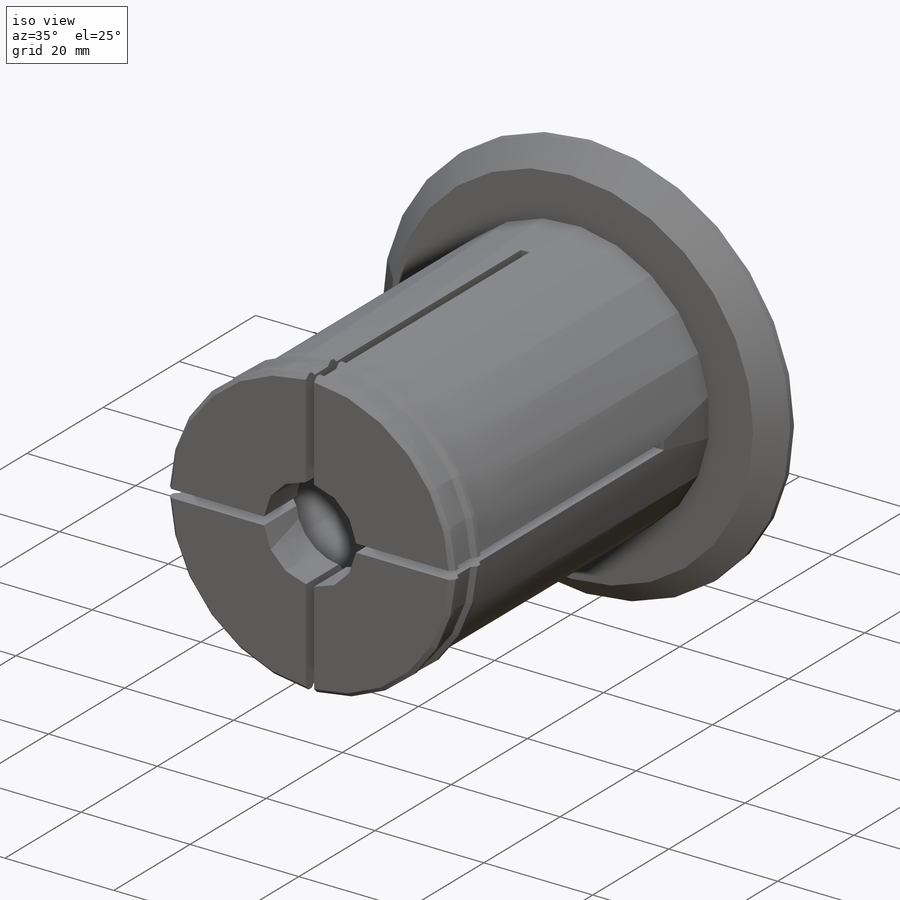
[diagram: iso view]
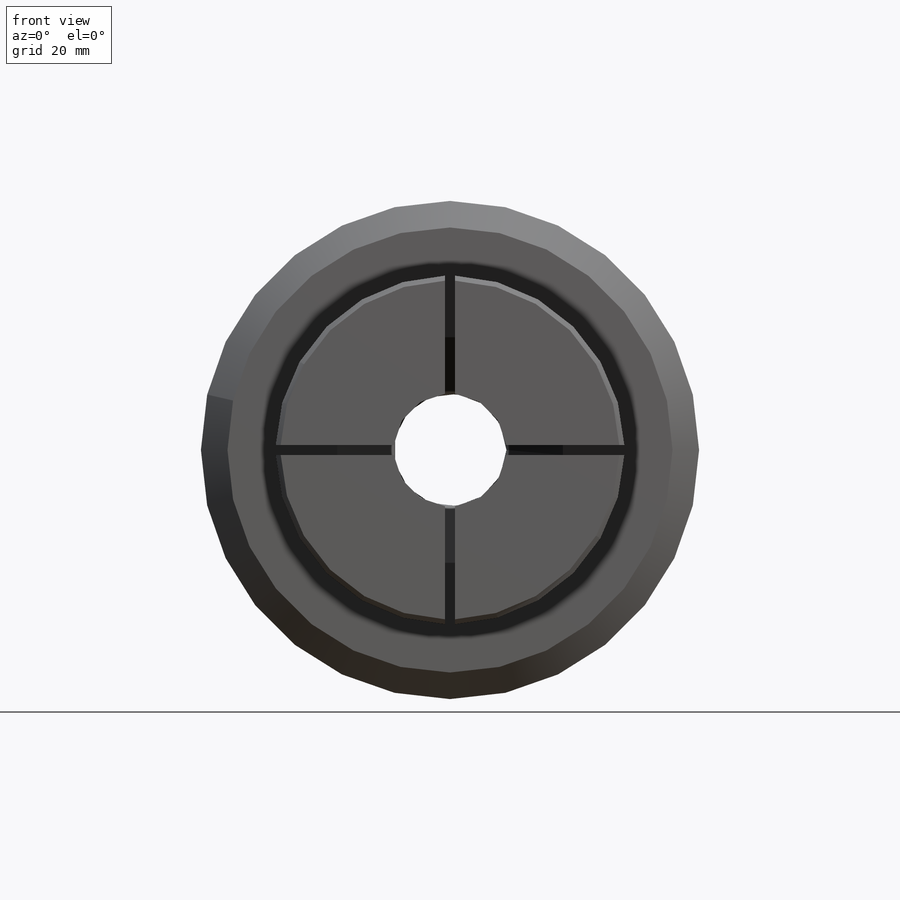
[diagram: front view]
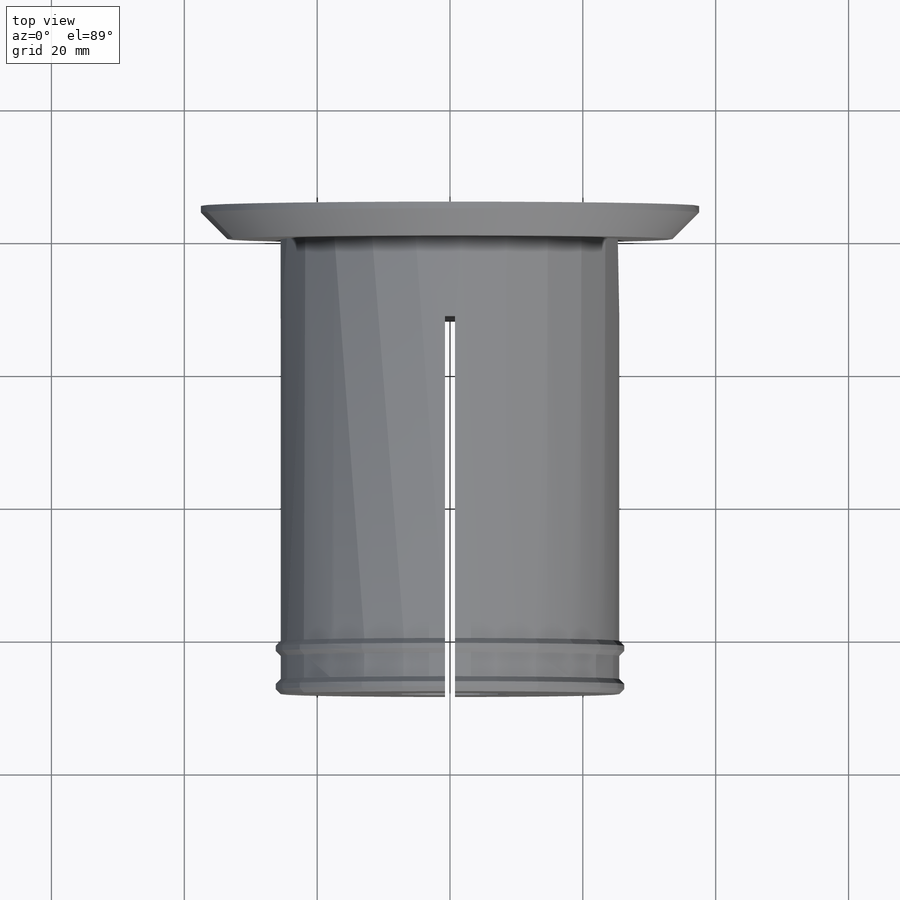
[diagram: top view]
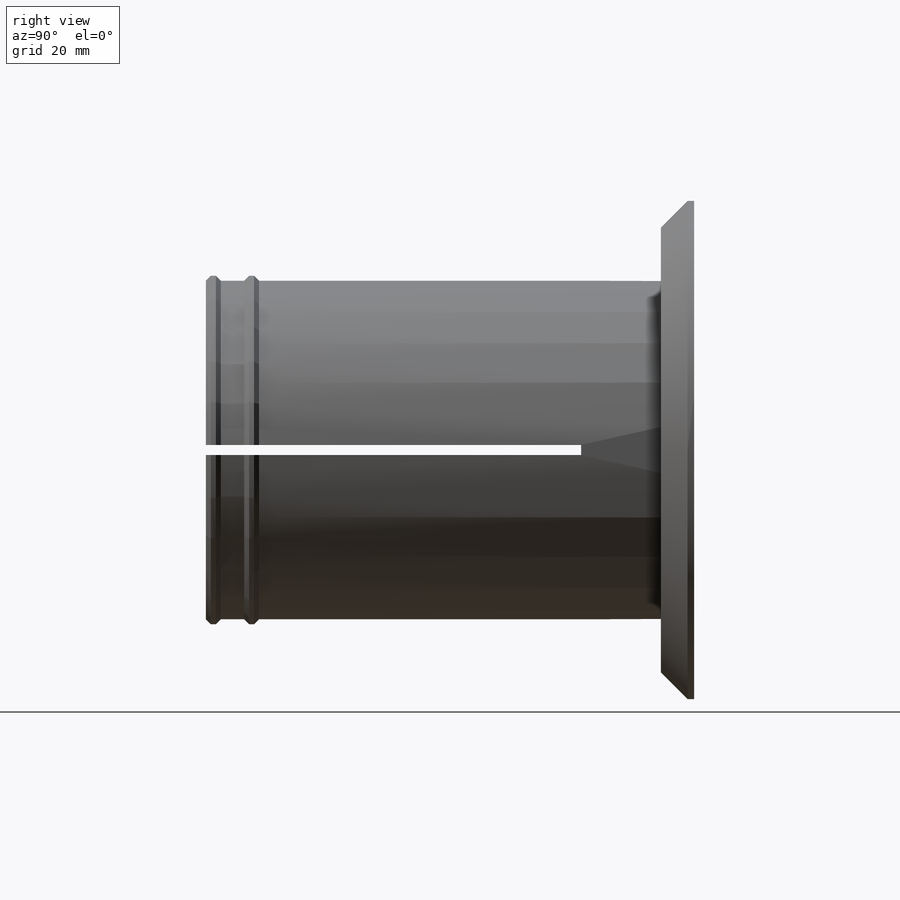
[diagram: right view]
SOLIDWORKS PART (.sldprt)
format: sldprt  version: not decoded by parser v0  size: 358,400 bytes
history: native  units: mm
features: sketch x6, extrude x2, cut_extrude x2, material x1, revolve x1, cut_revolve x1, pattern_circular x1, chamfer x1 (+12 scaffold rows collapsed)
feature tree (27):
  scaffold x12  (default folders/planes/origin — collapsed)
  material  "Material <not specified>"
  sketch  "Axle base sketch"  dims[D1=51.0mm D2=17.0mm]
  extrude  "Axle"  Depth=68.5mm
  sketch  "Guard base"  dims[D1=75.0mm]
  extrude  "Guard"  Depth=5mm
  sketch  "Inner axle hole base"  dims[D1=17.0mm]
  cut_extrude  "Inner axle hole"  [1 undecoded]
  sketch  "Mate ring base"  dims[c1.D1=135.0deg c2.D1=0.75mm c2.D2=0.75mm c2.D3=5.0mm c2.D4=0.75mm]
  revolve  "Mate rings"  Angle=360deg
  sketch  "Inner mass remove base"  dims[c1.D1=~11.828326mm c2.D1=135.0deg c2.D2=~17.618295mm]
  cut_revolve  "Inner mass remove"  Angle=360deg
  sketch  "Bend room base"  dims[D1=0.75mm D2=0.75mm D3=37.5mm D4=37.5mm]
  cut_extrude  "Bend room 1"  [1 undecoded]
  pattern_circular  "Bend room 2"  Count=2 Angle=90deg
  chamfer  "Easy removal chamfer"  Distance=4mm Angle=45deg
decode coverage: 12 of 14 modeling features carry decoded parameters
note: ~ marks probable driven/reference dimensions
note: 2 parameter values undecoded
note: suppression state not decoded; provenance and decode notes live in map.json
